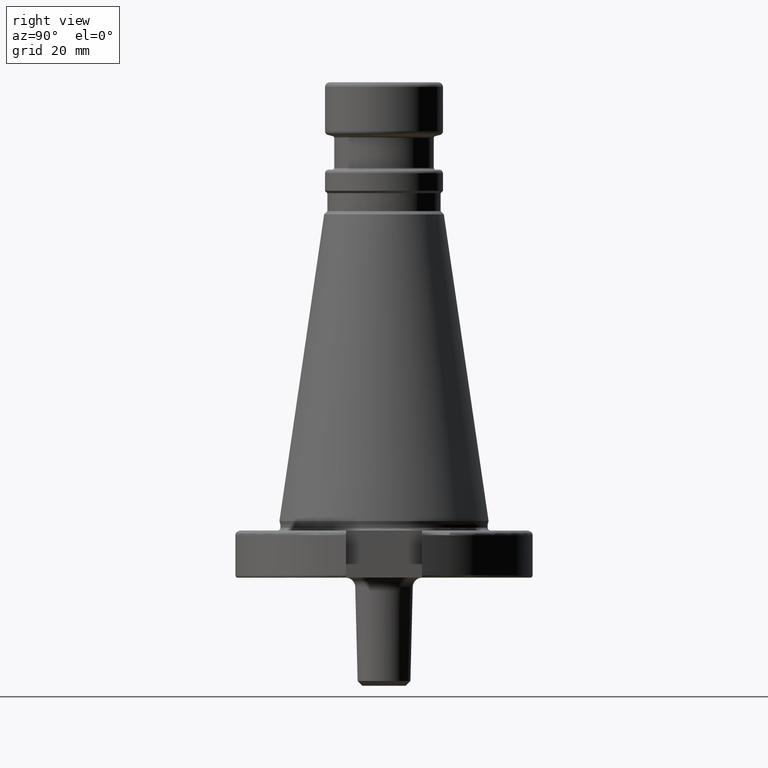
[diagram: clean part render]
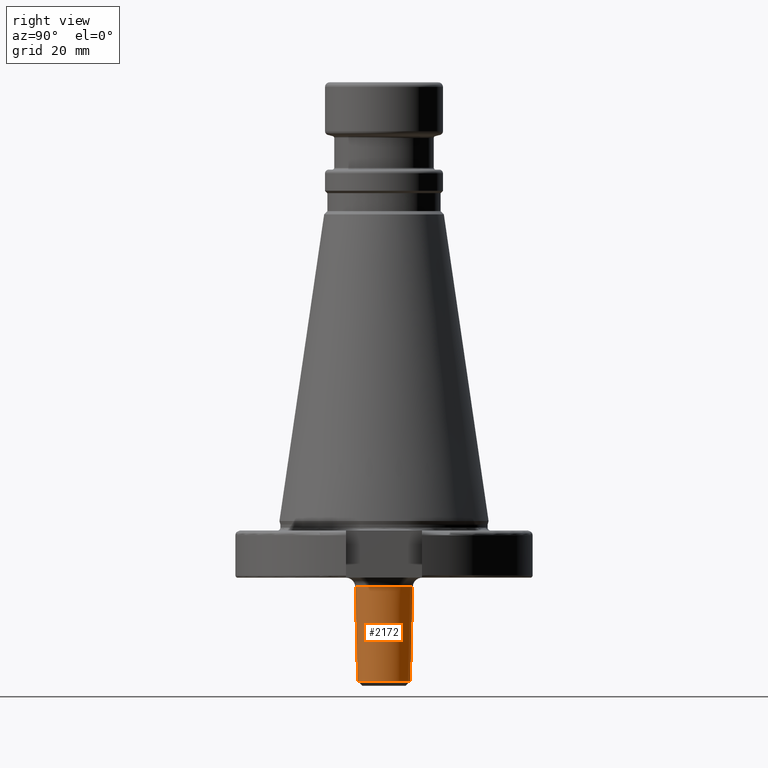
[diagram: same view with one face highlighted and labeled with its STEP entity id]
A machine part, right view. The second image highlights one B-rep face of the part: STEP entity #2172.
In plain terms, the highlighted conical surface has half-angle 1.429 deg.
Its self-contained STEP definition (entity closure, byte-faithful):
#767=CARTESIAN_POINT('',(0,0,-1.950137514816));
#768=DIRECTION('',(0,0,-1));
#769=DIRECTION('',(0,1,0));
#770=AXIS2_PLACEMENT_3D('',#767,#768,#769);
#792=DIRECTION('',(0.0000000001788194944076,0.02493124270066,0.9996891682605));
#793=VECTOR('',#792,19.95637639428);
#794=CARTESIAN_POINT('',(-0.000000003568588390772,5.596059843544,
-21.90031083390));
#795=LINE('',#794,#793);
#796=DIRECTION('',(-0.0000000001788194698926,-0.02493124270066,0.9996891682605));
#797=VECTOR('',#796,19.95637639428);
#798=CARTESIAN_POINT('',(0.000000003568587901561,-5.596059843544,
-21.90031083390));
#799=LINE('',#798,#797);
#808=CARTESIAN_POINT('',(0,0,-21.90031083174));
#809=DIRECTION('',(0,0,1));
#810=DIRECTION('',(0,-1,0));
#811=AXIS2_PLACEMENT_3D('',#808,#809,#810);
#1061=CARTESIAN_POINT('',(0,6.093597106855,-1.950137514816));
#1062=CARTESIAN_POINT('',(0,-6.093597106855,-1.950137514816));
#1063=VERTEX_POINT('',#1061);
#1064=VERTEX_POINT('',#1062);
#1065=CARTESIAN_POINT('',(0,5.596059845764,-21.90031083174));
#1066=CARTESIAN_POINT('',(0,-5.596059845764,-21.90031083174));
#1067=VERTEX_POINT('',#1065);
#1068=VERTEX_POINT('',#1066);
#2161=CARTESIAN_POINT('',(0,0,-11.92522417328));
#2162=DIRECTION('',(0,0,1));
#2163=DIRECTION('',(0,1,0));
#2164=AXIS2_PLACEMENT_3D('',#2161,#2162,#2163);
#2165=CONICAL_SURFACE('',#2164,5.844828476310,1.428603);
#2166=ORIENTED_EDGE('',*,*,#2152,.F.);
#2167=ORIENTED_EDGE('',*,*,#2127,.T.);
#2168=ORIENTED_EDGE('',*,*,#2097,.F.);
#2169=ORIENTED_EDGE('',*,*,#2124,.F.);
#2170=EDGE_LOOP('',(#2166,#2167,#2168,#2169));
#2171=FACE_OUTER_BOUND('',#2170,.F.);
#2172=ADVANCED_FACE('',(#2171),#2165,.T.);
#771=CIRCLE('',#770,6.093597106855);
#812=CIRCLE('',#811,5.596059845764);
#2097=EDGE_CURVE('',#1063,#1064,#771,.T.);
#2124=EDGE_CURVE('',#1067,#1063,#795,.T.);
#2127=EDGE_CURVE('',#1068,#1064,#799,.T.);
#2152=EDGE_CURVE('',#1068,#1067,#812,.T.);